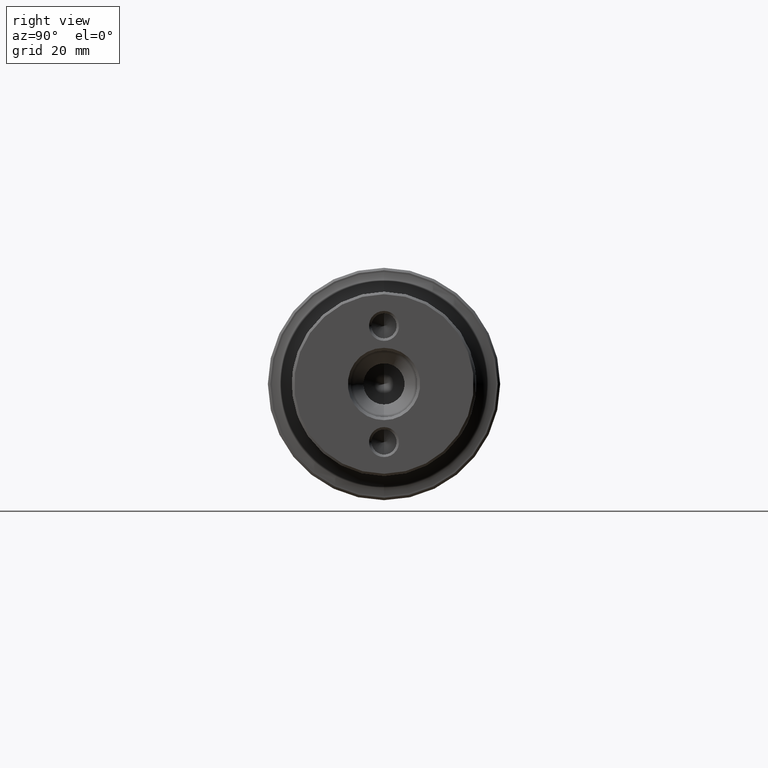
[diagram: clean part render]
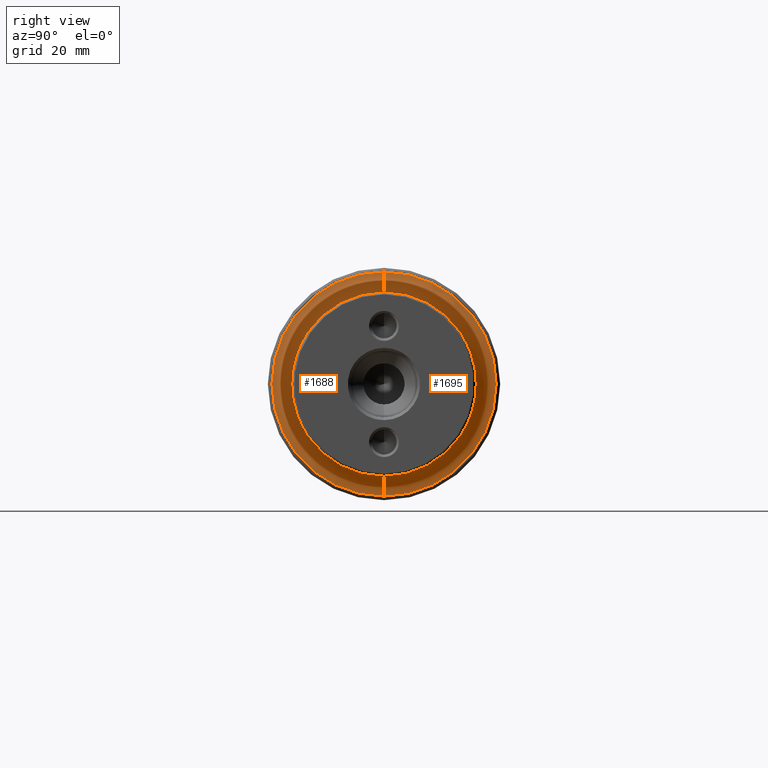
[diagram: same view with one multi-face feature highlighted, each face labeled with its STEP entity id]
A machine part, right view. The highlighted faces form ONE feature: a constant-radius fillet chain: 2 tangent blend faces with common blend radius 4.5 mm. The faces share edges in the B-rep.
Their STEP definitions:
[1] entity #1695 (Torus):
#96 = CARTESIAN_POINT ( 'NONE',  ( -95.00000000000000000, 0.0000000000000000000, -23.14999999999999900 ) ) ;
#101 = CARTESIAN_POINT ( 'NONE',  ( -90.50000000000000000, 0.0000000000000000000, -18.64999999999999100 ) ) ;
#102 = CARTESIAN_POINT ( 'NONE',  ( -90.50000000000000000, 2.559511810217967900E-015, 18.64999999999999100 ) ) ;
#208 = CARTESIAN_POINT ( 'NONE',  ( -95.00000000000000000, 2.835057340026122400E-015, 23.14999999999999900 ) ) ;
#274 = EDGE_CURVE ( 'NONE', #1119, #1068, #1516, .T. ) ;
#343 = EDGE_CURVE ( 'NONE', #1113, #1116, #1854, .T. ) ;
#347 = EDGE_CURVE ( 'NONE', #1116, #1068, #1846, .T. ) ;
#350 = EDGE_CURVE ( 'NONE', #1113, #1119, #1845, .T. ) ;
#563 = DIRECTION ( 'NONE',  ( 0.0000000000000000000, 0.0000000000000000000, -1.000000000000000000 ) ) ;
#564 = DIRECTION ( 'NONE',  ( -0.0000000000000000000, -1.000000000000000000, -0.0000000000000000000 ) ) ;
#565 = CARTESIAN_POINT ( 'NONE',  ( -90.50000000000000000, 0.0000000000000000000, -23.14999999999999900 ) ) ;
#582 = DIRECTION ( 'NONE',  ( 0.0000000000000000000, 1.224646799147353000E-016, 1.000000000000000000 ) ) ;
#583 = DIRECTION ( 'NONE',  ( 0.0000000000000000000, 1.000000000000000000, -1.224646799147353200E-016 ) ) ;
#584 = CARTESIAN_POINT ( 'NONE',  ( -90.50000000000000000, 2.835057340026122400E-015, 23.14999999999999900 ) ) ;
#595 = DIRECTION ( 'NONE',  ( 0.0000000000000000000, 0.0000000000000000000, -1.000000000000000000 ) ) ;
#596 = DIRECTION ( 'NONE',  ( 1.000000000000000000, -0.0000000000000000000, -0.0000000000000000000 ) ) ;
#597 = CARTESIAN_POINT ( 'NONE',  ( -90.50000000000000000, 0.0000000000000000000, 0.0000000000000000000 ) ) ;
#623 = EDGE_LOOP ( 'NONE', ( #1275, #1239, #1252, #963 ) ) ;
#733 = AXIS2_PLACEMENT_3D ( 'NONE', #2170, #2171, #2166 ) ;
#814 = DIRECTION ( 'NONE',  ( 0.0000000000000000000, 0.0000000000000000000, -1.000000000000000000 ) ) ;
#815 = DIRECTION ( 'NONE',  ( 1.000000000000000000, -0.0000000000000000000, -0.0000000000000000000 ) ) ;
#816 = CARTESIAN_POINT ( 'NONE',  ( -95.00000000000000000, 0.0000000000000000000, 0.0000000000000000000 ) ) ;
#963 = ORIENTED_EDGE ( 'NONE', *, *, #274, .T. ) ;
#1068 = VERTEX_POINT ( 'NONE', #208 ) ;
#1113 = VERTEX_POINT ( 'NONE', #101 ) ;
#1116 = VERTEX_POINT ( 'NONE', #102 ) ;
#1119 = VERTEX_POINT ( 'NONE', #96 ) ;
#1239 = ORIENTED_EDGE ( 'NONE', *, *, #343, .F. ) ;
#1252 = ORIENTED_EDGE ( 'NONE', *, *, #350, .T. ) ;
#1275 = ORIENTED_EDGE ( 'NONE', *, *, #347, .F. ) ;
#1326 = AXIS2_PLACEMENT_3D ( 'NONE', #565, #564, #563 ) ;
#1329 = AXIS2_PLACEMENT_3D ( 'NONE', #584, #583, #582 ) ;
#1331 = AXIS2_PLACEMENT_3D ( 'NONE', #597, #596, #595 ) ;
#1372 = AXIS2_PLACEMENT_3D ( 'NONE', #816, #815, #814 ) ;
#1516 = CIRCLE ( 'NONE', #1372, 23.14999999999999900 ) ;
#1695 = ADVANCED_FACE ( 'NONE', ( #1933 ), #1935, .F. ) ;
#1845 = CIRCLE ( 'NONE', #1326, 4.500000000000003600 ) ;
#1846 = CIRCLE ( 'NONE', #1329, 4.500000000000003600 ) ;
#1854 = CIRCLE ( 'NONE', #1331, 18.64999999999999100 ) ;
#1933 = FACE_OUTER_BOUND ( 'NONE', #623, .T. ) ;
#1935 = TOROIDAL_SURFACE ( 'NONE', #733, 23.14999999999999900, 4.500000000000003600 ) ;
#2166 = DIRECTION ( 'NONE',  ( 0.0000000000000000000, 0.0000000000000000000, -1.000000000000000000 ) ) ;
#2170 = CARTESIAN_POINT ( 'NONE',  ( -90.50000000000000000, 0.0000000000000000000, 0.0000000000000000000 ) ) ;
#2171 = DIRECTION ( 'NONE',  ( 1.000000000000000000, -0.0000000000000000000, -0.0000000000000000000 ) ) ;
[2] entity #1688 (Torus):
#96 = CARTESIAN_POINT ( 'NONE',  ( -95.00000000000000000, 0.0000000000000000000, -23.14999999999999900 ) ) ;
#101 = CARTESIAN_POINT ( 'NONE',  ( -90.50000000000000000, 0.0000000000000000000, -18.64999999999999100 ) ) ;
#102 = CARTESIAN_POINT ( 'NONE',  ( -90.50000000000000000, 2.559511810217967900E-015, 18.64999999999999100 ) ) ;
#208 = CARTESIAN_POINT ( 'NONE',  ( -95.00000000000000000, 2.835057340026122400E-015, 23.14999999999999900 ) ) ;
#346 = EDGE_CURVE ( 'NONE', #1116, #1113, #1852, .T. ) ;
#347 = EDGE_CURVE ( 'NONE', #1116, #1068, #1846, .T. ) ;
#348 = EDGE_CURVE ( 'NONE', #1068, #1119, #1848, .T. ) ;
#350 = EDGE_CURVE ( 'NONE', #1113, #1119, #1845, .T. ) ;
#563 = DIRECTION ( 'NONE',  ( 0.0000000000000000000, 0.0000000000000000000, -1.000000000000000000 ) ) ;
#564 = DIRECTION ( 'NONE',  ( -0.0000000000000000000, -1.000000000000000000, -0.0000000000000000000 ) ) ;
#565 = CARTESIAN_POINT ( 'NONE',  ( -90.50000000000000000, 0.0000000000000000000, -23.14999999999999900 ) ) ;
#573 = DIRECTION ( 'NONE',  ( 0.0000000000000000000, 0.0000000000000000000, -1.000000000000000000 ) ) ;
#577 = DIRECTION ( 'NONE',  ( 1.000000000000000000, -0.0000000000000000000, -0.0000000000000000000 ) ) ;
#579 = CARTESIAN_POINT ( 'NONE',  ( -95.00000000000000000, 0.0000000000000000000, 0.0000000000000000000 ) ) ;
#582 = DIRECTION ( 'NONE',  ( 0.0000000000000000000, 1.224646799147353000E-016, 1.000000000000000000 ) ) ;
#583 = DIRECTION ( 'NONE',  ( 0.0000000000000000000, 1.000000000000000000, -1.224646799147353200E-016 ) ) ;
#584 = CARTESIAN_POINT ( 'NONE',  ( -90.50000000000000000, 2.835057340026122400E-015, 23.14999999999999900 ) ) ;
#587 = DIRECTION ( 'NONE',  ( 0.0000000000000000000, 0.0000000000000000000, -1.000000000000000000 ) ) ;
#588 = DIRECTION ( 'NONE',  ( 1.000000000000000000, -0.0000000000000000000, -0.0000000000000000000 ) ) ;
#589 = CARTESIAN_POINT ( 'NONE',  ( -90.50000000000000000, 0.0000000000000000000, 0.0000000000000000000 ) ) ;
#674 = EDGE_LOOP ( 'NONE', ( #1242, #1211, #1303, #1195 ) ) ;
#740 = AXIS2_PLACEMENT_3D ( 'NONE', #2203, #2205, #2201 ) ;
#1068 = VERTEX_POINT ( 'NONE', #208 ) ;
#1113 = VERTEX_POINT ( 'NONE', #101 ) ;
#1116 = VERTEX_POINT ( 'NONE', #102 ) ;
#1119 = VERTEX_POINT ( 'NONE', #96 ) ;
#1195 = ORIENTED_EDGE ( 'NONE', *, *, #350, .F. ) ;
#1211 = ORIENTED_EDGE ( 'NONE', *, *, #347, .T. ) ;
#1242 = ORIENTED_EDGE ( 'NONE', *, *, #346, .F. ) ;
#1303 = ORIENTED_EDGE ( 'NONE', *, *, #348, .T. ) ;
#1326 = AXIS2_PLACEMENT_3D ( 'NONE', #565, #564, #563 ) ;
#1328 = AXIS2_PLACEMENT_3D ( 'NONE', #579, #577, #573 ) ;
#1329 = AXIS2_PLACEMENT_3D ( 'NONE', #584, #583, #582 ) ;
#1330 = AXIS2_PLACEMENT_3D ( 'NONE', #589, #588, #587 ) ;
#1688 = ADVANCED_FACE ( 'NONE', ( #1952 ), #1949, .F. ) ;
#1845 = CIRCLE ( 'NONE', #1326, 4.500000000000003600 ) ;
#1846 = CIRCLE ( 'NONE', #1329, 4.500000000000003600 ) ;
#1848 = CIRCLE ( 'NONE', #1328, 23.14999999999999900 ) ;
#1852 = CIRCLE ( 'NONE', #1330, 18.64999999999999100 ) ;
#1949 = TOROIDAL_SURFACE ( 'NONE', #740, 23.14999999999999900, 4.500000000000003600 ) ;
#1952 = FACE_OUTER_BOUND ( 'NONE', #674, .T. ) ;
#2201 = DIRECTION ( 'NONE',  ( 0.0000000000000000000, 0.0000000000000000000, -1.000000000000000000 ) ) ;
#2203 = CARTESIAN_POINT ( 'NONE',  ( -90.50000000000000000, 0.0000000000000000000, 0.0000000000000000000 ) ) ;
#2205 = DIRECTION ( 'NONE',  ( 1.000000000000000000, -0.0000000000000000000, -0.0000000000000000000 ) ) ;